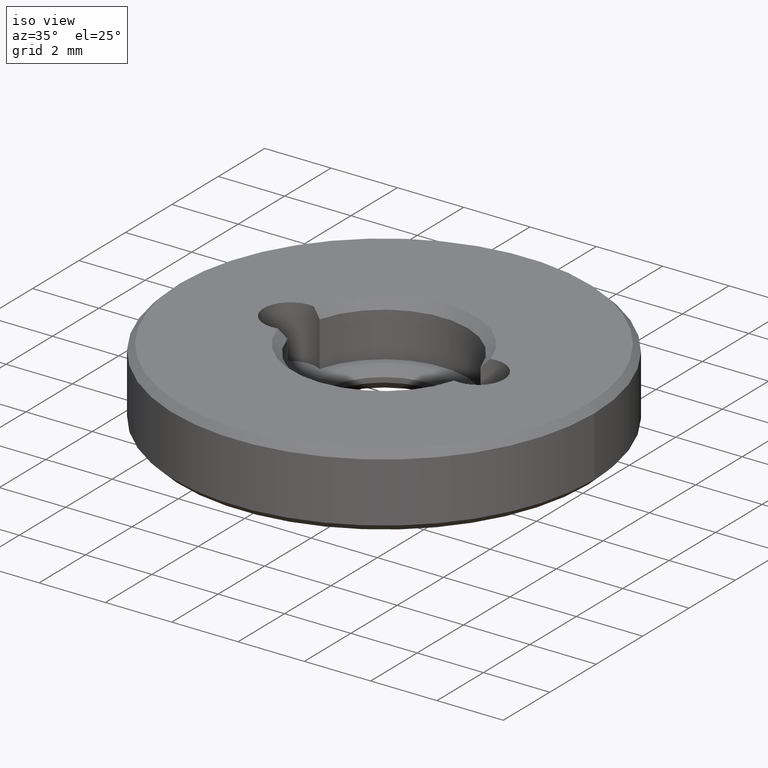
[diagram: clean part render]
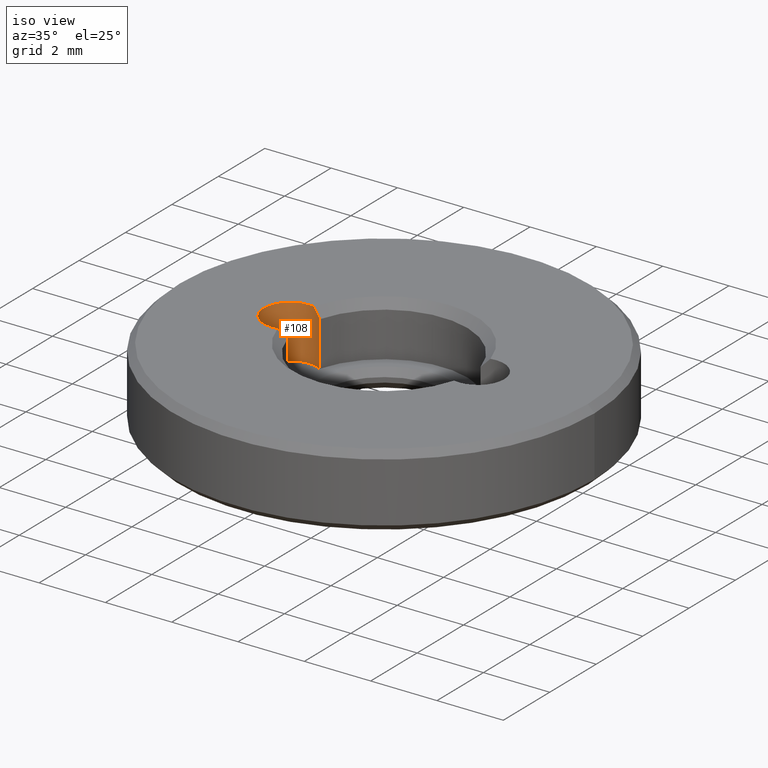
[diagram: same view with one face highlighted and labeled with its STEP entity id]
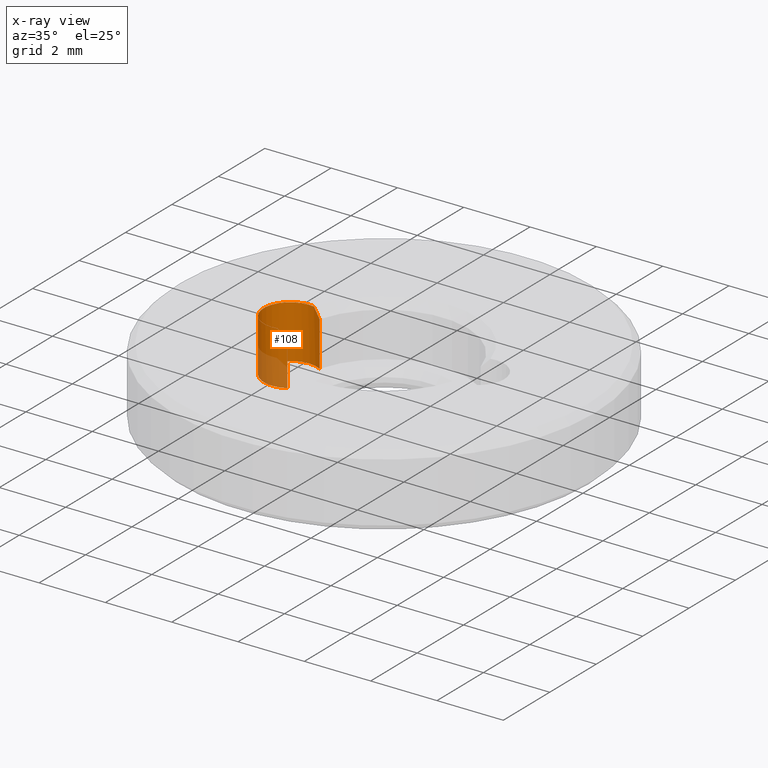
[diagram: x-ray of the same camera — body ghosted, the highlighted face saturated]
A machine part, iso view. The second image highlights one B-rep face of the part: STEP entity #108.
The next image is the same camera in x-ray: the body ghosted, the highlighted face saturated — about 19% of this face is hidden behind the body in this view.
In plain terms, the highlighted cylindrical surface (edge-blend (fillet) strip) has radius 0.8 mm, axis along (-0, -0, 1).
Its self-contained STEP definition (entity closure, byte-faithful):
#12 = CARTESIAN_POINT ( 'NONE',  ( -2.427654867256636706, -0.6943463440424824107, 1.400000000000000133 ) ) ;
#16 = DIRECTION ( 'NONE',  ( 1.000000000000000000, 0.000000000000000000, 0.000000000000000000 ) ) ;
#17 = VERTEX_POINT ( 'NONE', #163 ) ;
#24 = VECTOR ( 'NONE', #617, 1000.000000000000000 ) ;
#32 = CARTESIAN_POINT ( 'NONE',  ( -2.579803107964387721, 0.7661303284904835698, 2.116150911711492721 ) ) ;
#38 = VERTEX_POINT ( 'NONE', #262 ) ;
#45 = CARTESIAN_POINT ( 'NONE',  ( -2.824999999999999734, -3.459627207591272175E-16, -1.662741699796954853 ) ) ;
#49 = CARTESIAN_POINT ( 'NONE',  ( -2.427654867256636706, 0.6943463440424816335, 1.400000000000000133 ) ) ;
#81 = VERTEX_POINT ( 'NONE', #366 ) ;
#84 = ORIENTED_EDGE ( 'NONE', *, *, #684, .T. ) ;
#98 = FACE_OUTER_BOUND ( 'NONE', #528, .T. ) ;
#108 = ADVANCED_FACE ( 'NONE', ( #98 ), #318, .F. ) ;
#112 = CIRCLE ( 'NONE', #564, 0.8000000000000008216 ) ;
#116 = LINE ( 'NONE', #12, #24 ) ;
#134 = CARTESIAN_POINT ( 'NONE',  ( -2.662168141592921700, 0.7832533344248834295, 2.200000000000000178 ) ) ;
#152 = EDGE_CURVE ( 'NONE', #603, #561, #333, .T. ) ;
#163 = CARTESIAN_POINT ( 'NONE',  ( -2.427654867256636706, 0.6943463440424815225, 1.949999999999998623 ) ) ;
#165 = EDGE_CURVE ( 'NONE', #17, #38, #321, .T. ) ;
#172 = ORIENTED_EDGE ( 'NONE', *, *, #645, .F. ) ;
#219 = DIRECTION ( 'NONE',  ( -0.000000000000000000, -0.000000000000000000, 1.000000000000000000 ) ) ;
#223 = CARTESIAN_POINT ( 'NONE',  ( -2.662168141592921700, 0.7832533344248834295, 2.200000000000000178 ) ) ;
#229 = EDGE_CURVE ( 'NONE', #81, #38, #587, .T. ) ;
#241 = CARTESIAN_POINT ( 'NONE',  ( -2.427654867256636706, 0.6943463440424815225, 1.949999999999998623 ) ) ;
#262 = CARTESIAN_POINT ( 'NONE',  ( -2.427654867256636706, 0.6943463440424815225, 0.6000000000000003109 ) ) ;
#264 = CARTESIAN_POINT ( 'NONE',  ( -2.662168141592921700, -0.7832533344248840956, 2.200000000000000178 ) ) ;
#270 = DIRECTION ( 'NONE',  ( 0.000000000000000000, 0.000000000000000000, -1.000000000000000000 ) ) ;
#278 = ORIENTED_EDGE ( 'NONE', *, *, #165, .F. ) ;
#279 = CARTESIAN_POINT ( 'NONE',  ( -2.662168141592921700, -0.7832533344248840956, 2.200000000000000178 ) ) ;
#280 = CARTESIAN_POINT ( 'NONE',  ( -2.824999999999999734, -3.459627207591272175E-16, 0.6000000000000003109 ) ) ;
#285 = DIRECTION ( 'NONE',  ( -0.000000000000000000, -0.000000000000000000, -1.000000000000000000 ) ) ;
#310 = AXIS2_PLACEMENT_3D ( 'NONE', #280, #285, #16 ) ;
#318 = CYLINDRICAL_SURFACE ( 'NONE', #643, 0.8000000000000008216 ) ;
#321 = LINE ( 'NONE', #49, #400 ) ;
#333 = B_SPLINE_CURVE_WITH_KNOTS ( 'NONE', 3,
 ( #264, #695, #435, #642 ),
 .UNSPECIFIED., .F., .F.,
 ( 4, 4 ),
 ( 2.815520022824704393E-07, 0.0003544014875863181198 ),
 .UNSPECIFIED. ) ;
#353 = ORIENTED_EDGE ( 'NONE', *, *, #152, .T. ) ;
#366 = CARTESIAN_POINT ( 'NONE',  ( -2.427654867256636706, -0.6943463440424822997, 0.6000000000000003109 ) ) ;
#379 = DIRECTION ( 'NONE',  ( 1.000000000000000000, 0.000000000000000000, 0.000000000000000000 ) ) ;
#394 = ORIENTED_EDGE ( 'NONE', *, *, #229, .T. ) ;
#400 = VECTOR ( 'NONE', #270, 1000.000000000000000 ) ;
#409 = EDGE_CURVE ( 'NONE', #520, #603, #112, .T. ) ;
#435 = CARTESIAN_POINT ( 'NONE',  ( -2.501625393944902243, -0.7366765571965202541, 2.032759104116572679 ) ) ;
#461 = B_SPLINE_CURVE_WITH_KNOTS ( 'NONE', 3,
 ( #241, #681, #32, #134 ),
 .UNSPECIFIED., .F., .F.,
 ( 4, 4 ),
 ( 2.852635793396073392E-07, 0.0003544051991633754271 ),
 .UNSPECIFIED. ) ;
#470 = ORIENTED_EDGE ( 'NONE', *, *, #409, .T. ) ;
#476 = CARTESIAN_POINT ( 'NONE',  ( -2.824999999999999734, -3.459627207591272175E-16, 2.200000000000000178 ) ) ;
#520 = VERTEX_POINT ( 'NONE', #223 ) ;
#528 = EDGE_LOOP ( 'NONE', ( #394, #278, #84, #470, #353, #172 ) ) ;
#534 = DIRECTION ( 'NONE',  ( 1.000000000000000000, 0.000000000000000000, 0.000000000000000000 ) ) ;
#540 = DIRECTION ( 'NONE',  ( 0.000000000000000000, 0.000000000000000000, 1.000000000000000000 ) ) ;
#551 = CARTESIAN_POINT ( 'NONE',  ( -2.427654867256636706, -0.6943463440424820776, 1.949999999999998623 ) ) ;
#561 = VERTEX_POINT ( 'NONE', #551 ) ;
#564 = AXIS2_PLACEMENT_3D ( 'NONE', #476, #540, #379 ) ;
#587 = CIRCLE ( 'NONE', #310, 0.8000000000000008216 ) ;
#603 = VERTEX_POINT ( 'NONE', #279 ) ;
#617 = DIRECTION ( 'NONE',  ( -0.000000000000000000, -0.000000000000000000, 1.000000000000000000 ) ) ;
#642 = CARTESIAN_POINT ( 'NONE',  ( -2.427654867256636706, -0.6943463440424820776, 1.949999999999998623 ) ) ;
#643 = AXIS2_PLACEMENT_3D ( 'NONE', #45, #219, #534 ) ;
#645 = EDGE_CURVE ( 'NONE', #81, #561, #116, .T. ) ;
#681 = CARTESIAN_POINT ( 'NONE',  ( -2.501625393944902243, 0.7366765571965196990, 2.032759104116572235 ) ) ;
#684 = EDGE_CURVE ( 'NONE', #17, #520, #461, .T. ) ;
#695 = CARTESIAN_POINT ( 'NONE',  ( -2.579803107964387276, -0.7661303284904841249, 2.116150911711492721 ) ) ;